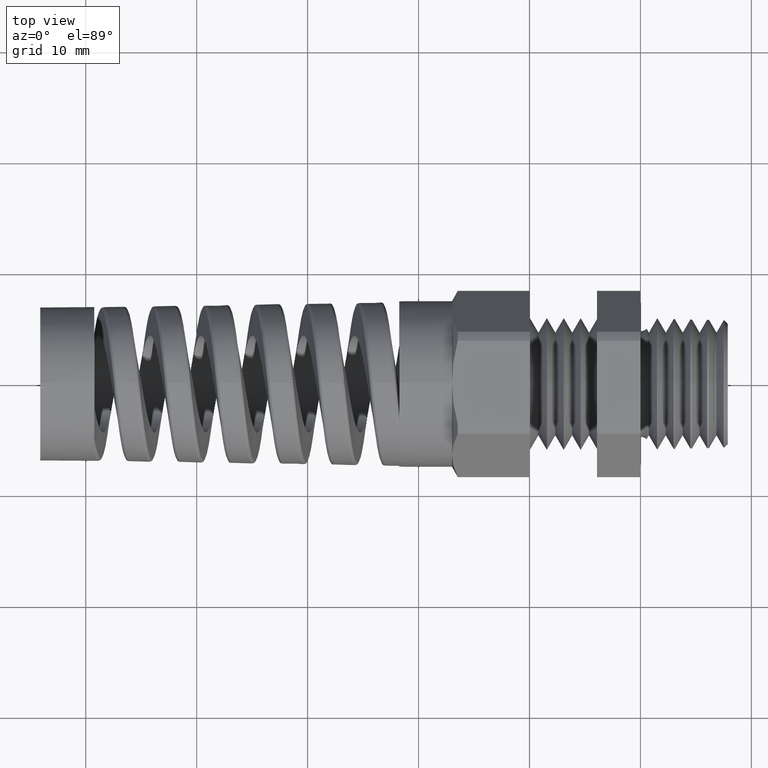
[diagram: clean part render]
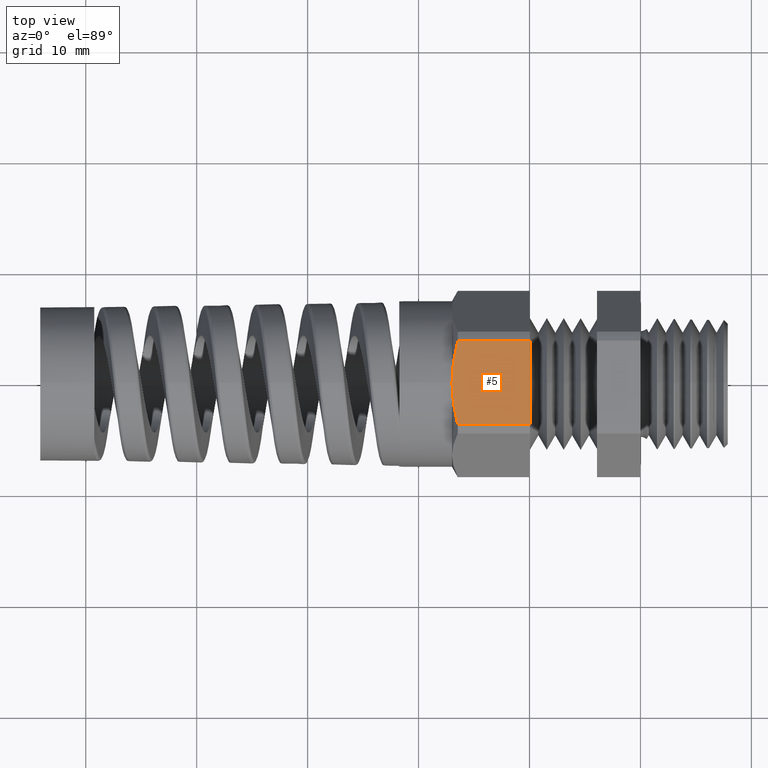
[diagram: same view with one face highlighted and labeled with its STEP entity id]
A machine part, top view. The second image highlights one B-rep face of the part: STEP entity #5.
In plain terms, the highlighted planar face has unit normal (0, 0, 1).
Its self-contained STEP definition (entity closure, byte-faithful):
#5 = ADVANCED_FACE ( 'NONE', ( #1222 ), #1221, .T. ) ;
#6 = VERTEX_POINT ( 'NONE', #1216 ) ;
#15 = VERTEX_POINT ( 'NONE', #1215 ) ;
#55 = EDGE_CURVE ( 'NONE', #15, #6, #1253, .T. ) ;
#74 = ORIENTED_EDGE ( 'NONE', *, *, #9929, .T. ) ;
#89 = ORIENTED_EDGE ( 'NONE', *, *, #93, .T. ) ;
#93 = EDGE_CURVE ( 'NONE', #9930, #6, #1248, .T. ) ;
#94 = ORIENTED_EDGE ( 'NONE', *, *, #95, .T. ) ;
#95 = EDGE_CURVE ( 'NONE', #9682, #9726, #1243, .T. ) ;
#96 = ORIENTED_EDGE ( 'NONE', *, *, #97, .T. ) ;
#97 = EDGE_CURVE ( 'NONE', #15, #9682, #1282, .T. ) ;
#1215 = CARTESIAN_POINT ( 'NONE',  ( -0.6483118004706872600, 0.1487923385124382000, 0.2950000000000000400 ) ) ;
#1216 = CARTESIAN_POINT ( 'NONE',  ( -0.3920833333333332800, 0.1487923385124382000, 0.2950000000000000400 ) ) ;
#1217 = DIRECTION ( 'NONE',  ( 1.000000000000000000, 0.0000000000000000000, 0.0000000000000000000 ) ) ;
#1218 = DIRECTION ( 'NONE',  ( 0.0000000000000000000, 0.0000000000000000000, 1.000000000000000000 ) ) ;
#1219 = CARTESIAN_POINT ( 'NONE',  ( -1.612607445236302600, 0.1487923385124382800, 0.2950000000000000400 ) ) ;
#1220 = AXIS2_PLACEMENT_3D ( 'NONE', #1219, #1218, #1217 ) ;
#1221 = PLANE ( 'NONE',  #1220 ) ;
#1222 = FACE_OUTER_BOUND ( 'NONE', #9739, .T. ) ;
#1232 = CARTESIAN_POINT ( 'NONE',  ( -0.6483118004706872600, -0.1487923385124382800, 0.2950000000000000400 ) ) ;
#1233 = CARTESIAN_POINT ( 'NONE',  ( -0.6546358786678908600, -0.1244693279789878800, 0.2950000000000000400 ) ) ;
#1234 = CARTESIAN_POINT ( 'NONE',  ( -0.6598382952289477700, -0.09962235669522283300, 0.2949999999999999800 ) ) ;
#1235 = CARTESIAN_POINT ( 'NONE',  ( -0.6668849065099121700, -0.04995790088282989900, 0.2950000000000000400 ) ) ;
#1236 = CARTESIAN_POINT ( 'NONE',  ( -0.6687499999999999600, -0.02503176339243228300, 0.2949999999999999800 ) ) ;
#1237 = CARTESIAN_POINT ( 'NONE',  ( -0.6687499999999999600, 0.0000000000000000000, 0.2949999999999999800 ) ) ;
#1243 = B_SPLINE_CURVE_WITH_KNOTS ( 'NONE', 3,
 ( #1237, #1236, #1235, #1234, #1233, #1232 ),
 .UNSPECIFIED., .F., .F.,
 ( 4, 2, 4 ),
 ( 0.007986125927306988300, 0.009887176414941712200, 0.01178822690257643600 ),
 .UNSPECIFIED. ) ;
#1245 = DIRECTION ( 'NONE',  ( 0.0000000000000000000, 1.000000000000000000, 0.0000000000000000000 ) ) ;
#1246 = VECTOR ( 'NONE', #1245, 39.37007874015748100 ) ;
#1247 = CARTESIAN_POINT ( 'NONE',  ( -0.3920833333333332800, 0.2350000000000000100, 0.2950000000000000400 ) ) ;
#1248 = LINE ( 'NONE', #1247, #1246 ) ;
#1250 = DIRECTION ( 'NONE',  ( 1.000000000000000000, 0.0000000000000000000, 0.0000000000000000000 ) ) ;
#1251 = VECTOR ( 'NONE', #1250, 39.37007874015748100 ) ;
#1252 = CARTESIAN_POINT ( 'NONE',  ( -1.612607445236302600, 0.1487923385124382000, 0.2950000000000000400 ) ) ;
#1253 = LINE ( 'NONE', #1252, #1251 ) ;
#1273 = CARTESIAN_POINT ( 'NONE',  ( -0.6687499999999999600, 0.0000000000000000000, 0.2949999999999999800 ) ) ;
#1274 = CARTESIAN_POINT ( 'NONE',  ( -0.6687499999999996200, 0.01251102984057287500, 0.2949999999999999800 ) ) ;
#1275 = CARTESIAN_POINT ( 'NONE',  ( -0.6682886392550063700, 0.02504818793965521400, 0.2949999999999999800 ) ) ;
#1276 = CARTESIAN_POINT ( 'NONE',  ( -0.6664539795682502500, 0.05017414996423313200, 0.2949999999999999800 ) ) ;
#1277 = CARTESIAN_POINT ( 'NONE',  ( -0.6650738706461848400, 0.06279360639189912600, 0.2949999999999999800 ) ) ;
#1278 = CARTESIAN_POINT ( 'NONE',  ( -0.6597381713101825300, 0.1001808597390345100, 0.2950000000000000400 ) ) ;
#1279 = CARTESIAN_POINT ( 'NONE',  ( -0.6545892602780010200, 0.1246486267720971100, 0.2950000000000000400 ) ) ;
#1280 = CARTESIAN_POINT ( 'NONE',  ( -0.6483118004706872600, 0.1487923385124382000, 0.2950000000000000400 ) ) ;
#1282 = B_SPLINE_CURVE_WITH_KNOTS ( 'NONE', 3,
 ( #1280, #1279, #1278, #1277, #1276, #1275, #1274, #1273 ),
 .UNSPECIFIED., .F., .F.,
 ( 4, 2, 2, 4 ),
 ( 0.004185498858992004400, 0.006085812393149496800, 0.007035969160228242600, 0.007986125927306988300 ),
 .UNSPECIFIED. ) ;
#9379 = CARTESIAN_POINT ( 'NONE',  ( -0.6687499999999999600, 0.0000000000000000000, 0.2949999999999999800 ) ) ;
#9447 = CARTESIAN_POINT ( 'NONE',  ( -0.6483118004706872600, -0.1487923385124382800, 0.2950000000000000400 ) ) ;
#9574 = CARTESIAN_POINT ( 'NONE',  ( -0.3920833333333332800, -0.1487923385124382800, 0.2950000000000000400 ) ) ;
#9575 = DIRECTION ( 'NONE',  ( 1.000000000000000000, 0.0000000000000000000, 0.0000000000000000000 ) ) ;
#9576 = VECTOR ( 'NONE', #9575, 39.37007874015748100 ) ;
#9577 = CARTESIAN_POINT ( 'NONE',  ( -1.612607445236302600, -0.1487923385124382800, 0.2950000000000000400 ) ) ;
#9578 = LINE ( 'NONE', #9577, #9576 ) ;
#9682 = VERTEX_POINT ( 'NONE', #9379 ) ;
#9726 = VERTEX_POINT ( 'NONE', #9447 ) ;
#9739 = EDGE_LOOP ( 'NONE', ( #9740, #96, #94, #74, #89 ) ) ;
#9740 = ORIENTED_EDGE ( 'NONE', *, *, #55, .F. ) ;
#9929 = EDGE_CURVE ( 'NONE', #9726, #9930, #9578, .T. ) ;
#9930 = VERTEX_POINT ( 'NONE', #9574 ) ;